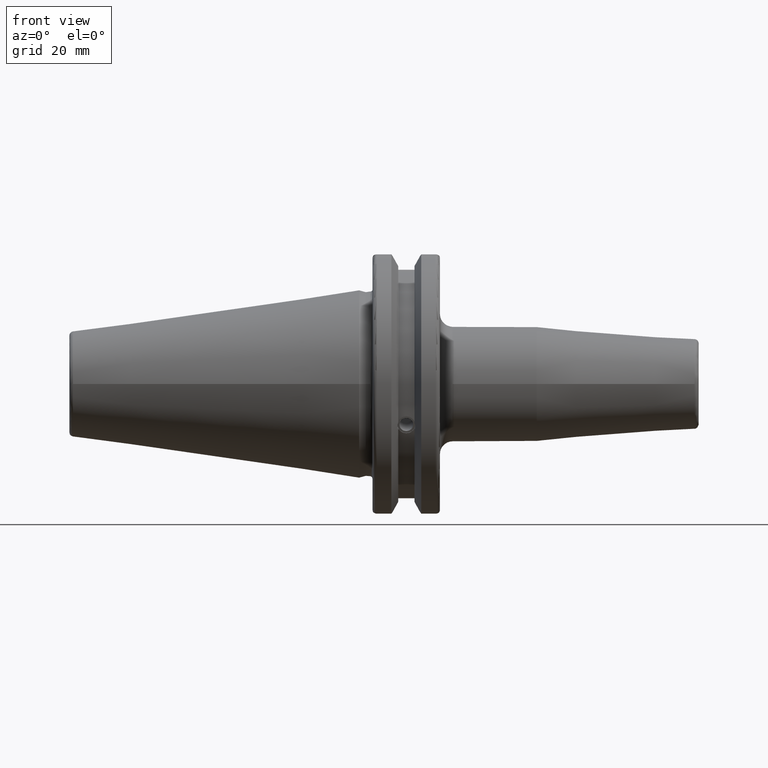
[diagram: clean part render]
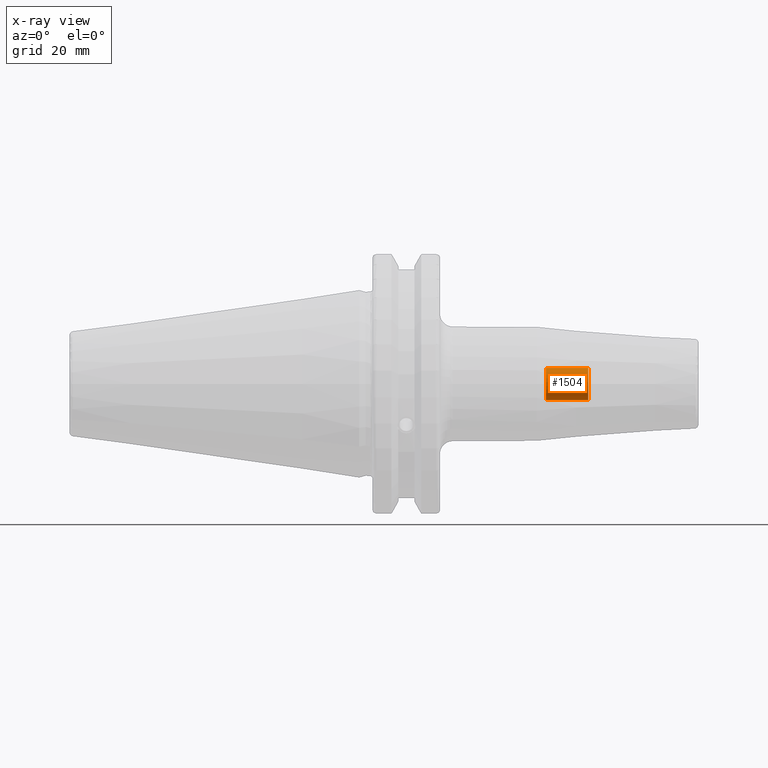
[diagram: x-ray — body ghosted, one internal face saturated and labeled with its STEP entity id]
A machine part, front view, then the same camera in x-ray: the body is ghosted and one INTERNAL B-rep face — a face not visible from any outside direction — is saturated and labeled: STEP entity #1504.
In plain terms, the highlighted cylindrical surface (bore or boss wall) has radius 3.775 mm, axis along (1, 0, 0).
Its self-contained STEP definition (entity closure, byte-faithful):
#106=LINE('',#2321,#200);
#200=VECTOR('',#1864,3.775);
#283=CYLINDRICAL_SURFACE('',#1634,3.775);
#371=FACE_OUTER_BOUND('',#461,.T.);
#461=EDGE_LOOP('',(#1068,#1069,#1070,#1071));
#573=CIRCLE('',#1635,3.775);
#574=CIRCLE('',#1636,3.775);
#656=VERTEX_POINT('',#2318);
#657=VERTEX_POINT('',#2320);
#817=EDGE_CURVE('',#656,#656,#573,.T.);
#818=EDGE_CURVE('',#656,#657,#106,.T.);
#819=EDGE_CURVE('',#657,#657,#574,.T.);
#1068=ORIENTED_EDGE('',*,*,#817,.T.);
#1069=ORIENTED_EDGE('',*,*,#818,.T.);
#1070=ORIENTED_EDGE('',*,*,#819,.T.);
#1071=ORIENTED_EDGE('',*,*,#818,.F.);
#1504=ADVANCED_FACE('',(#371),#283,.F.);
#1634=AXIS2_PLACEMENT_3D('',#2317,#1860,#1861);
#1635=AXIS2_PLACEMENT_3D('',#2319,#1862,#1863);
#1636=AXIS2_PLACEMENT_3D('',#2322,#1865,#1866);
#1860=DIRECTION('center_axis',(1.,0.,0.));
#1861=DIRECTION('ref_axis',(0.,0.,-1.));
#1862=DIRECTION('center_axis',(-1.,0.,0.));
#1863=DIRECTION('ref_axis',(0.,0.,-1.));
#1864=DIRECTION('',(1.,0.,0.));
#1865=DIRECTION('center_axis',(1.,0.,0.));
#1866=DIRECTION('ref_axis',(0.,0.,-1.));
#2317=CARTESIAN_POINT('Origin',(49.,0.,0.));
#2318=CARTESIAN_POINT('',(44.,-4.62304166678126E-16,3.775));
#2319=CARTESIAN_POINT('Origin',(44.,0.,0.));
#2320=CARTESIAN_POINT('',(54.,-4.62304166678126E-16,3.775));
#2321=CARTESIAN_POINT('',(49.,-4.62304166678126E-16,3.775));
#2322=CARTESIAN_POINT('Origin',(54.,0.,0.));